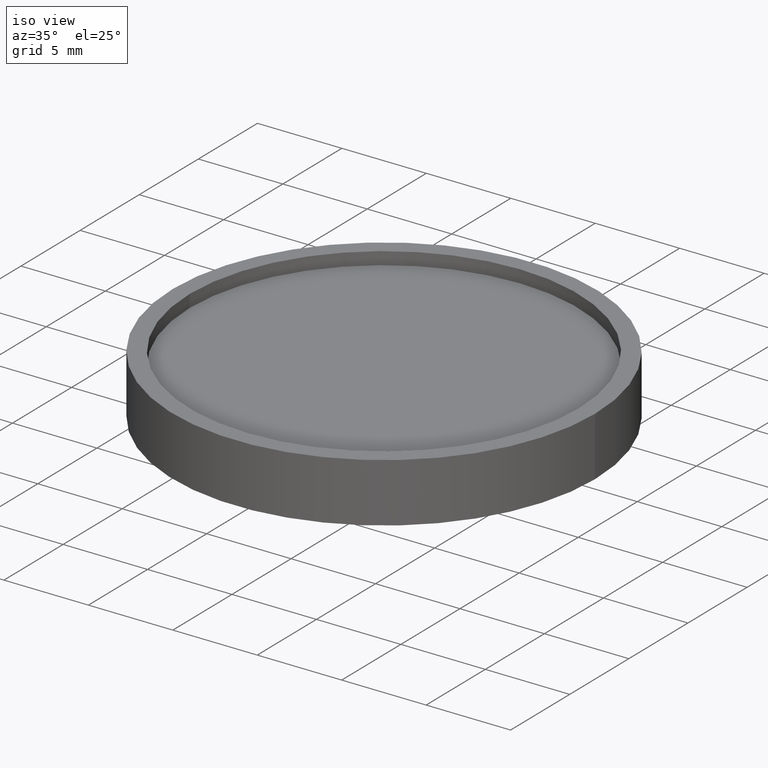
[diagram: clean part render]
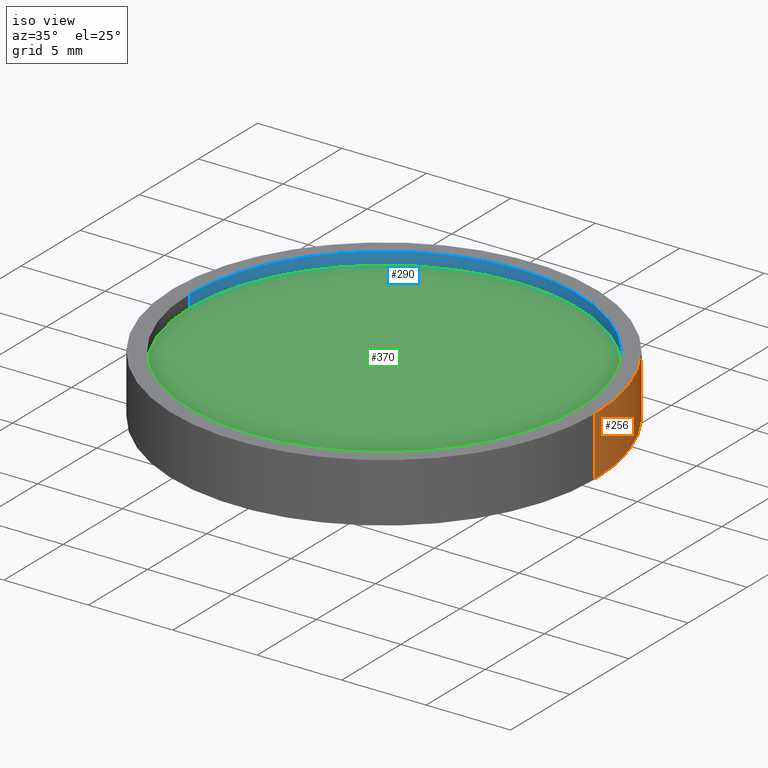
[diagram: same view with three faces highlighted in distinct colors, each labeled with its STEP entity id]
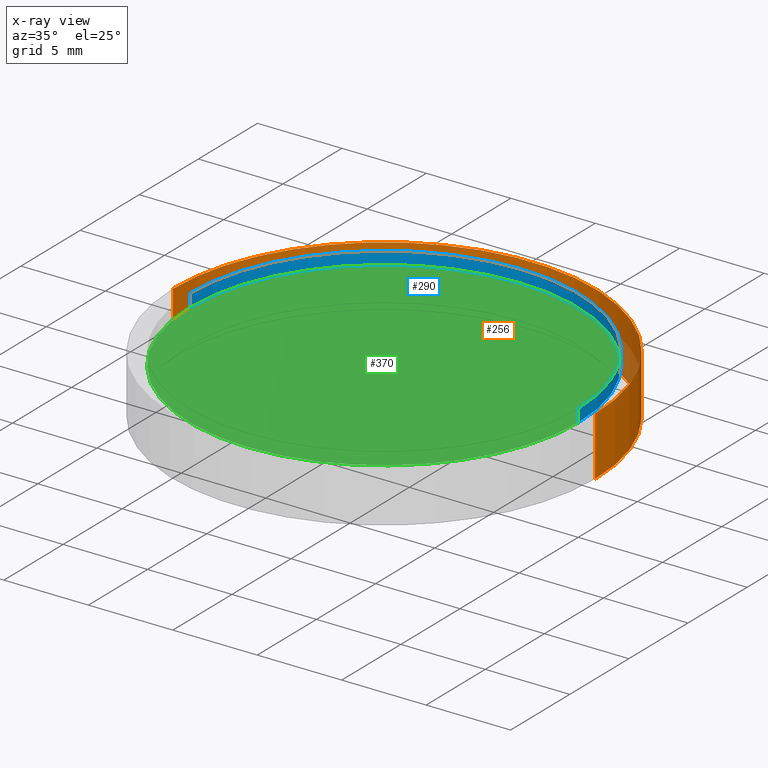
[diagram: x-ray of the same camera — body ghosted, the three highlighted faces saturated]
A machine part, iso view with three faces highlighted in distinct colors.
The next image is the same camera in x-ray (body ghosted, the three faces saturated) — at least one of them is partly hidden behind the body in this view.
Their STEP definitions:

[orange] entity #256 — the highlighted cylindrical surface (partial cylindrical patch) has radius 12.5 mm, axis along (-0, -0, -1).
#5 = DIRECTION ( 'NONE',  ( -1.000000000000000000, 0.000000000000000000, 0.000000000000000000 ) ) ;
#22 = CARTESIAN_POINT ( 'NONE',  ( 0.000000000000000000, 0.000000000000000000, 0.000000000000000000 ) ) ;
#25 = ORIENTED_EDGE ( 'NONE', *, *, #32, .F. ) ;
#32 = EDGE_CURVE ( 'NONE', #252, #227, #368, .T. ) ;
#37 = CARTESIAN_POINT ( 'NONE',  ( -12.50000000000000000, 0.000000000000000000, 3.500000000000000000 ) ) ;
#53 = DIRECTION ( 'NONE',  ( 0.000000000000000000, 0.000000000000000000, 1.000000000000000000 ) ) ;
#55 = VECTOR ( 'NONE', #316, 1000.000000000000000 ) ;
#57 = CARTESIAN_POINT ( 'NONE',  ( 12.50000000000000000, 1.530808498934191521E-15, 0.000000000000000000 ) ) ;
#62 = EDGE_CURVE ( 'NONE', #227, #225, #193, .T. ) ;
#65 = CARTESIAN_POINT ( 'NONE',  ( -12.50000000000000000, 0.000000000000000000, 0.000000000000000000 ) ) ;
#67 = EDGE_CURVE ( 'NONE', #165, #225, #250, .T. ) ;
#71 = DIRECTION ( 'NONE',  ( -0.000000000000000000, -0.000000000000000000, -1.000000000000000000 ) ) ;
#79 = CARTESIAN_POINT ( 'NONE',  ( 12.50000000000000000, 1.530808498934191521E-15, 3.500000000000000000 ) ) ;
#112 = VECTOR ( 'NONE', #71, 1000.000000000000000 ) ;
#115 = ORIENTED_EDGE ( 'NONE', *, *, #330, .T. ) ;
#131 = CYLINDRICAL_SURFACE ( 'NONE', #238, 12.50000000000000000 ) ;
#139 = LINE ( 'NONE', #79, #112 ) ;
#141 = DIRECTION ( 'NONE',  ( 0.000000000000000000, 0.000000000000000000, 1.000000000000000000 ) ) ;
#142 = CARTESIAN_POINT ( 'NONE',  ( 0.000000000000000000, 0.000000000000000000, 3.500000000000000000 ) ) ;
#159 = ORIENTED_EDGE ( 'NONE', *, *, #67, .T. ) ;
#161 = CARTESIAN_POINT ( 'NONE',  ( -12.50000000000000000, 0.000000000000000000, 3.500000000000000000 ) ) ;
#165 = VERTEX_POINT ( 'NONE', #57 ) ;
#190 = ORIENTED_EDGE ( 'NONE', *, *, #62, .F. ) ;
#193 = LINE ( 'NONE', #161, #55 ) ;
#196 = EDGE_LOOP ( 'NONE', ( #25, #115, #159, #190 ) ) ;
#225 = VERTEX_POINT ( 'NONE', #65 ) ;
#227 = VERTEX_POINT ( 'NONE', #37 ) ;
#237 = FACE_OUTER_BOUND ( 'NONE', #196, .T. ) ;
#238 = AXIS2_PLACEMENT_3D ( 'NONE', #363, #296, #5 ) ;
#250 = CIRCLE ( 'NONE', #401, 12.50000000000000000 ) ;
#252 = VERTEX_POINT ( 'NONE', #420 ) ;
#256 = ADVANCED_FACE ( 'NONE', ( #237 ), #131, .T. ) ;
#296 = DIRECTION ( 'NONE',  ( -0.000000000000000000, -0.000000000000000000, -1.000000000000000000 ) ) ;
#303 = DIRECTION ( 'NONE',  ( 1.000000000000000000, 0.000000000000000000, 0.000000000000000000 ) ) ;
#316 = DIRECTION ( 'NONE',  ( -0.000000000000000000, -0.000000000000000000, -1.000000000000000000 ) ) ;
#330 = EDGE_CURVE ( 'NONE', #252, #165, #139, .T. ) ;
#351 = DIRECTION ( 'NONE',  ( 1.000000000000000000, 0.000000000000000000, 0.000000000000000000 ) ) ;
#358 = AXIS2_PLACEMENT_3D ( 'NONE', #142, #53, #351 ) ;
#363 = CARTESIAN_POINT ( 'NONE',  ( 0.000000000000000000, 0.000000000000000000, 3.500000000000000000 ) ) ;
#368 = CIRCLE ( 'NONE', #358, 12.50000000000000000 ) ;
#401 = AXIS2_PLACEMENT_3D ( 'NONE', #22, #141, #303 ) ;
#420 = CARTESIAN_POINT ( 'NONE',  ( 12.50000000000000000, 1.530808498934191521E-15, 3.500000000000000000 ) ) ;

[blue] entity #290 — the highlighted cylindrical surface (partial cylindrical patch) has radius 11.5 mm, axis along (-0, -0, 1).
#8 = CARTESIAN_POINT ( 'NONE',  ( 0.000000000000000000, 0.000000000000000000, 3.500000000000000000 ) ) ;
#36 = CIRCLE ( 'NONE', #383, 11.50000000000000000 ) ;
#42 = EDGE_LOOP ( 'NONE', ( #95, #411, #282, #221 ) ) ;
#47 = FACE_OUTER_BOUND ( 'NONE', #42, .T. ) ;
#73 = CIRCLE ( 'NONE', #387, 11.50000000000000000 ) ;
#74 = DIRECTION ( 'NONE',  ( 1.000000000000000000, 0.000000000000000000, 0.000000000000000000 ) ) ;
#93 = VERTEX_POINT ( 'NONE', #396 ) ;
#95 = ORIENTED_EDGE ( 'NONE', *, *, #230, .F. ) ;
#102 = CARTESIAN_POINT ( 'NONE',  ( 11.50000000000000000, 0.000000000000000000, 2.750000000000000000 ) ) ;
#106 = DIRECTION ( 'NONE',  ( 1.000000000000000000, 0.000000000000000000, 0.000000000000000000 ) ) ;
#119 = VERTEX_POINT ( 'NONE', #403 ) ;
#127 = VECTOR ( 'NONE', #397, 1000.000000000000000 ) ;
#137 = DIRECTION ( 'NONE',  ( 0.000000000000000000, 0.000000000000000000, 1.000000000000000000 ) ) ;
#146 = EDGE_CURVE ( 'NONE', #119, #343, #36, .T. ) ;
#148 = LINE ( 'NONE', #176, #127 ) ;
#155 = AXIS2_PLACEMENT_3D ( 'NONE', #365, #371, #106 ) ;
#171 = LINE ( 'NONE', #392, #200 ) ;
#176 = CARTESIAN_POINT ( 'NONE',  ( 11.50000000000000000, 0.000000000000000000, 2.750000000000000000 ) ) ;
#200 = VECTOR ( 'NONE', #206, 1000.000000000000000 ) ;
#206 = DIRECTION ( 'NONE',  ( -0.000000000000000000, -0.000000000000000000, 1.000000000000000000 ) ) ;
#207 = CARTESIAN_POINT ( 'NONE',  ( -11.50000000000000000, 1.408343819019456176E-15, 3.500000000000000000 ) ) ;
#221 = ORIENTED_EDGE ( 'NONE', *, *, #146, .T. ) ;
#230 = EDGE_CURVE ( 'NONE', #93, #343, #171, .T. ) ;
#269 = DIRECTION ( 'NONE',  ( 1.000000000000000000, 0.000000000000000000, 0.000000000000000000 ) ) ;
#273 = CYLINDRICAL_SURFACE ( 'NONE', #155, 11.50000000000000000 ) ;
#282 = ORIENTED_EDGE ( 'NONE', *, *, #405, .T. ) ;
#287 = VERTEX_POINT ( 'NONE', #102 ) ;
#290 = ADVANCED_FACE ( 'NONE', ( #47 ), #273, .F. ) ;
#307 = CARTESIAN_POINT ( 'NONE',  ( 0.000000000000000000, 0.000000000000000000, 2.750000000000000000 ) ) ;
#343 = VERTEX_POINT ( 'NONE', #207 ) ;
#365 = CARTESIAN_POINT ( 'NONE',  ( 0.000000000000000000, 0.000000000000000000, 2.750000000000000000 ) ) ;
#366 = DIRECTION ( 'NONE',  ( 0.000000000000000000, 0.000000000000000000, 1.000000000000000000 ) ) ;
#371 = DIRECTION ( 'NONE',  ( -0.000000000000000000, -0.000000000000000000, 1.000000000000000000 ) ) ;
#383 = AXIS2_PLACEMENT_3D ( 'NONE', #8, #137, #269 ) ;
#387 = AXIS2_PLACEMENT_3D ( 'NONE', #307, #366, #74 ) ;
#390 = EDGE_CURVE ( 'NONE', #287, #93, #73, .T. ) ;
#392 = CARTESIAN_POINT ( 'NONE',  ( -11.50000000000000000, 1.408343819019456176E-15, 2.750000000000000000 ) ) ;
#396 = CARTESIAN_POINT ( 'NONE',  ( -11.50000000000000000, 1.408343819019456176E-15, 2.750000000000000000 ) ) ;
#397 = DIRECTION ( 'NONE',  ( -0.000000000000000000, -0.000000000000000000, 1.000000000000000000 ) ) ;
#403 = CARTESIAN_POINT ( 'NONE',  ( 11.50000000000000000, 0.000000000000000000, 3.500000000000000000 ) ) ;
#405 = EDGE_CURVE ( 'NONE', #287, #119, #148, .T. ) ;
#411 = ORIENTED_EDGE ( 'NONE', *, *, #390, .F. ) ;

[green] entity #370 — the highlighted planar face has unit normal (0, 0, 1).
#4 = AXIS2_PLACEMENT_3D ( 'NONE', #110, #103, #242 ) ;
#61 = DIRECTION ( 'NONE',  ( 0.000000000000000000, 0.000000000000000000, 1.000000000000000000 ) ) ;
#73 = CIRCLE ( 'NONE', #387, 11.50000000000000000 ) ;
#74 = DIRECTION ( 'NONE',  ( 1.000000000000000000, 0.000000000000000000, 0.000000000000000000 ) ) ;
#93 = VERTEX_POINT ( 'NONE', #396 ) ;
#102 = CARTESIAN_POINT ( 'NONE',  ( 11.50000000000000000, 0.000000000000000000, 2.750000000000000000 ) ) ;
#103 = DIRECTION ( 'NONE',  ( 0.000000000000000000, 0.000000000000000000, 1.000000000000000000 ) ) ;
#110 = CARTESIAN_POINT ( 'NONE',  ( 0.000000000000000000, 0.000000000000000000, 2.750000000000000000 ) ) ;
#117 = EDGE_LOOP ( 'NONE', ( #352, #167 ) ) ;
#138 = CIRCLE ( 'NONE', #223, 11.50000000000000000 ) ;
#160 = CARTESIAN_POINT ( 'NONE',  ( 0.000000000000000000, 0.000000000000000000, 2.750000000000000000 ) ) ;
#167 = ORIENTED_EDGE ( 'NONE', *, *, #211, .T. ) ;
#168 = DIRECTION ( 'NONE',  ( 1.000000000000000000, 0.000000000000000000, 0.000000000000000000 ) ) ;
#211 = EDGE_CURVE ( 'NONE', #93, #287, #138, .T. ) ;
#223 = AXIS2_PLACEMENT_3D ( 'NONE', #160, #61, #168 ) ;
#242 = DIRECTION ( 'NONE',  ( 1.000000000000000000, 0.000000000000000000, -0.000000000000000000 ) ) ;
#287 = VERTEX_POINT ( 'NONE', #102 ) ;
#299 = FACE_OUTER_BOUND ( 'NONE', #117, .T. ) ;
#307 = CARTESIAN_POINT ( 'NONE',  ( 0.000000000000000000, 0.000000000000000000, 2.750000000000000000 ) ) ;
#352 = ORIENTED_EDGE ( 'NONE', *, *, #390, .T. ) ;
#366 = DIRECTION ( 'NONE',  ( 0.000000000000000000, 0.000000000000000000, 1.000000000000000000 ) ) ;
#370 = ADVANCED_FACE ( 'NONE', ( #299 ), #395, .T. ) ;
#387 = AXIS2_PLACEMENT_3D ( 'NONE', #307, #366, #74 ) ;
#390 = EDGE_CURVE ( 'NONE', #287, #93, #73, .T. ) ;
#395 = PLANE ( 'NONE',  #4 ) ;
#396 = CARTESIAN_POINT ( 'NONE',  ( -11.50000000000000000, 1.408343819019456176E-15, 2.750000000000000000 ) ) ;